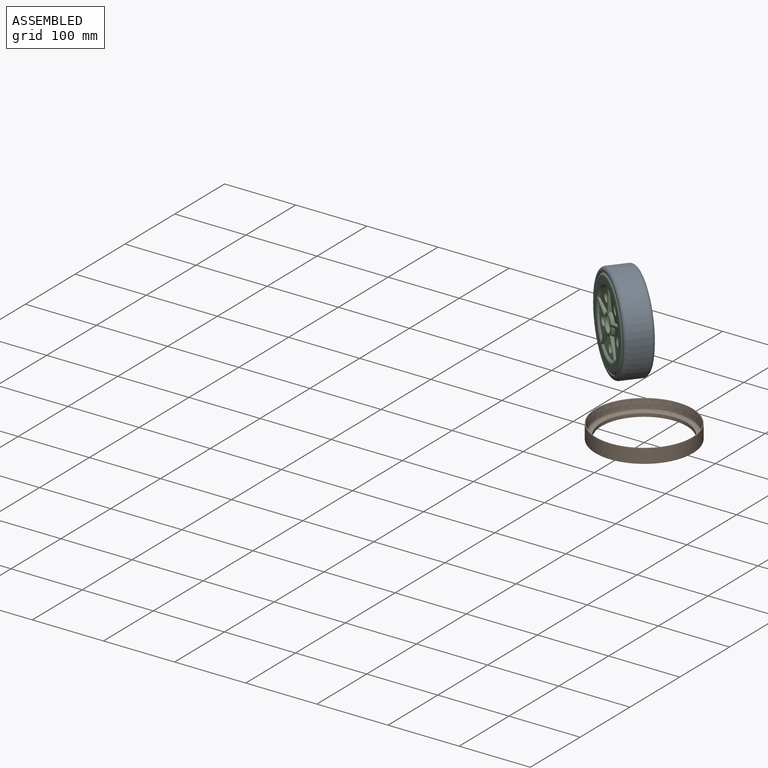
[diagram: assembled view]
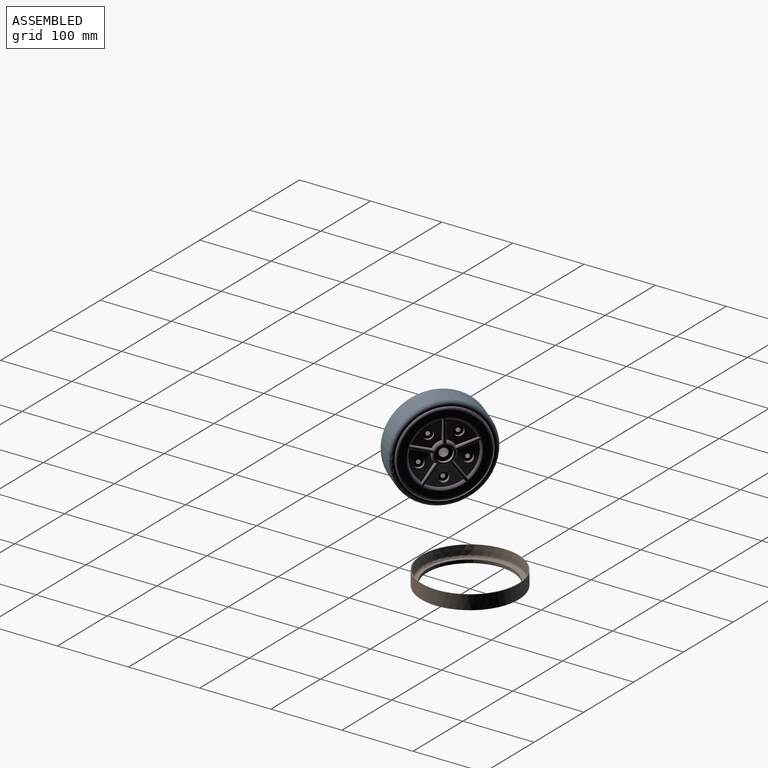
[diagram: assembled view, second angle]
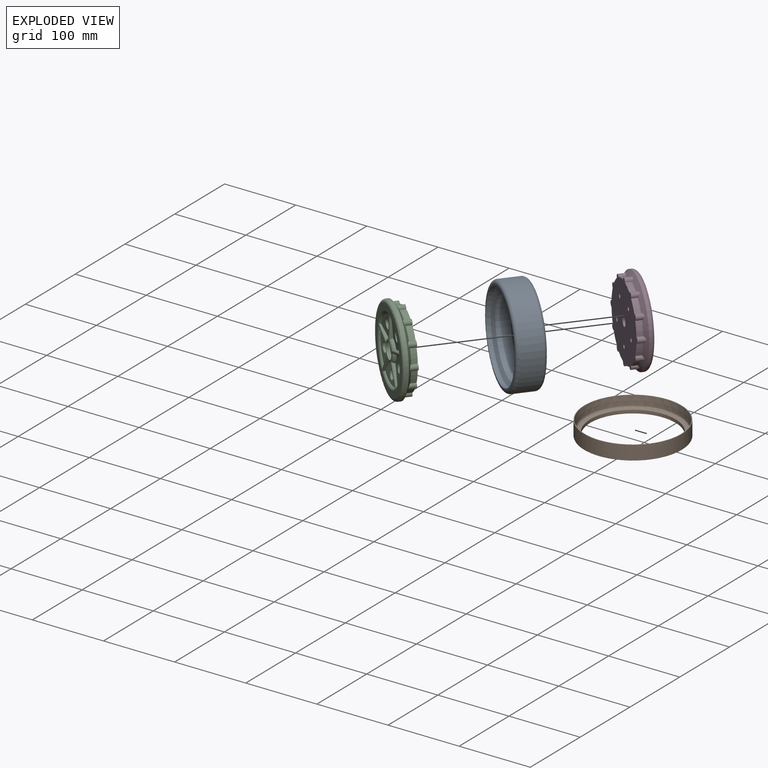
[diagram: exploded view]
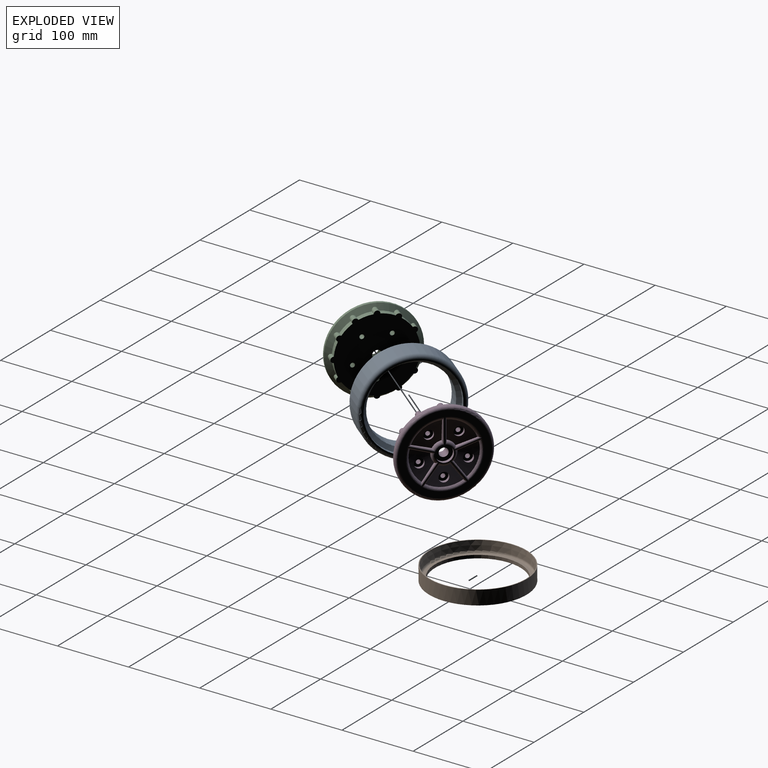
[diagram: exploded view, second angle]
ASSEMBLY  parts=4 mates=2
PART A: 10 faces, bbox 145x38x145 mm
  f0: cylinder r=54mm len=108mm, axis (0,-1,0), area 6276.9mm2, adj f4,f8
  f1: cylinder r=67mm len=134mm, axis (0,-1,0), area 11787.3mm2, adj f5,f9
  f2: plane 124x124mm, normal (0,1,0), area 766.5mm2, adj f3,f5
  f3: cylinder r=60mm len=120mm, axis (0,-1,0), area 2261.9mm2, adj f2,f4
  f4: cone r=54mm half-angle=58deg, axis (0,1,0), area 2534mm2, adj f0,f3
  f5: torus R=62mm, axis (0,-1,0), area 3216.7mm2, adj f1,f2
  f6: plane 124x124mm, normal (0,-1,0), area 766.5mm2, adj f7,f9
  f7: cylinder r=60mm len=120mm, axis (0,1,0), area 2261.9mm2, adj f6,f8
  f8: cone r=54mm half-angle=58deg, axis (0,-1,0), area 2534mm2, adj f0,f7
  f9: torus R=62mm, axis (0,1,0), area 3216.7mm2, adj f1,f6
PART B: 7 faces, bbox 144x144x20 mm
  f0: plane 127x127mm, normal (0,0,1), area 1358mm2, adj f1,f6
  f1: cylinder r=60mm len=120mm, axis (0,0,-1), area 1696.5mm2, adj f0,f3
  f2: cylinder r=68.5mm len=137mm, axis (0,0,-1), area 8608mm2, adj f3,f4
  f3: plane 137x137mm, normal (0,0,-1), area 3431.4mm2, adj f1,f2
  f4: plane 137x137mm, normal (0,0,1), area 427.3mm2, adj f2,f5
  f5: cone r=67.5mm half-angle=4.5deg, axis (0,0,1), area 5378.4mm2, adj f4,f6
  f6: torus R=63.5mm, axis (0,0,-1), area 1837.6mm2, adj f0,f5
PART C: 92 faces, bbox 129.9x20x129.9 mm
  f0: cylinder r=52mm len=13.52mm, axis (0,-1,0), area 153.8mm2, adj f26,f28,f90,f91
  f1: cylinder r=52mm len=18.46mm, axis (0,-1,0), area 153.8mm2, adj f26,f28,f89,f90
  f2: cylinder r=52mm len=18.46mm, axis (0,-1,0), area 153.8mm2, adj f26,f28,f88,f89
  f3: cylinder r=52mm len=13.52mm, axis (0,-1,0), area 153.8mm2, adj f26,f28,f87,f88
  f4: cylinder r=52mm len=18.46mm, axis (0,-1,0), area 153.8mm2, adj f26,f28,f86,f87
  f5: cylinder r=52mm len=18.46mm, axis (0,-1,0), area 153.8mm2, adj f26,f28,f85,f86
  f6: cylinder r=52mm len=13.52mm, axis (0,-1,0), area 153.8mm2, adj f26,f28,f84,f85
  f7: cylinder r=52mm len=18.46mm, axis (0,-1,0), area 153.8mm2, adj f26,f28,f83,f84
  f8: cylinder r=52mm len=18.46mm, axis (0,-1,0), area 153.8mm2, adj f26,f28,f82,f83
  f9: cylinder r=52mm len=13.52mm, axis (0,-1,0), area 153.8mm2, adj f26,f28,f81,f82
  f10: cylinder r=52mm len=18.46mm, axis (0,-1,0), area 153.8mm2, adj f26,f28,f80,f81
  f11: cone r=42.75mm half-angle=85deg, axis (0,1,0), area 723.5mm2, adj f23,f25,f34,f43,f75
  f12: cone r=45mm half-angle=40deg, axis (0,1,0), area 80.8mm2, adj f14,f41,f42,f45,f56,f57
  f13: cylinder r=16mm len=13.82mm, axis (0,-1,0), area 15.1mm2, adj f14,f41,f42,f44
  f14: cone r=42.75mm half-angle=85deg, axis (0,1,0), area 723.4mm2, adj f12,f13,f41,f42,f73
  f15: cone r=45mm half-angle=40deg, axis (0,1,0), area 80.8mm2, adj f17,f39,f40,f47,f58,f59
  f16: cylinder r=16mm len=14.53mm, axis (0,-1,0), area 15.1mm2, adj f17,f39,f40,f46
  f17: cone r=42.75mm half-angle=85deg, axis (0,1,0), area 723.5mm2, adj f15,f16,f39,f40,f71
  f18: cone r=45mm half-angle=40deg, axis (0,1,0), area 80.8mm2, adj f21,f37,f38,f49,f60,f61
  f19: cylinder r=16mm len=13.82mm, axis (0,-1,0), area 15.1mm2, adj f21,f37,f38,f48
  f20: cone r=45mm half-angle=40deg, axis (0,1,0), area 80.8mm2, adj f24,f35,f36,f50,f62,f63
  f21: cone r=42.75mm half-angle=85deg, axis (0,1,0), area 723.4mm2, adj f18,f19,f37,f38,f79
  f22: cylinder r=16mm len=11.76mm, axis (0,-1,0), area 15.1mm2, adj f24,f35,f36,f51
  f23: cone r=45mm half-angle=40deg, axis (0,1,0), area 80.8mm2, adj f11,f34,f43,f52,f55,f64
  f24: cone r=42.75mm half-angle=85deg, axis (0,1,0), area 723.5mm2, adj f20,f22,f35,f36,f77
  f25: cylinder r=16mm len=11.76mm, axis (0,-1,0), area 15.1mm2, adj f11,f34,f43,f53
  f26: plane 112x112mm, normal (0,-1,0), area 8546.9mm2, adj f0,f1,f2,f3,f4,f5,f6,f7
  f27: cylinder r=52mm len=18.46mm, axis (0,-1,0), area 153.8mm2, adj f26,f28,f80,f91
  f28: cone r=60mm half-angle=58deg, axis (0,1,0), area 2959.5mm2, adj f0,f1,f2,f3,f4,f5,f6,f7
  f29: cylinder r=60mm len=120mm, axis (0,-1,0), area 1131mm2, adj f28,f54
  f30: plane 22.23x22.23mm, normal (0,1,0), area 274.9mm2, adj f31,f33
  f31: cylinder r=11.11mm len=22.23mm, axis (0,1,0), area 349.1mm2, adj f30,f32
  f32: plane 112x112mm, normal (0,1,0), area 3190.8mm2, adj f31,f44,f45,f46,f47,f48,f49,f50
  f33: cylinder r=6mm len=15mm, axis (0,1,0), area 565.5mm2, adj f26,f30
  f34: plane 28.04x3.05mm, normal (-1,0,0), area 50.1mm2, adj f11,f23,f25,f53,f64
  f35: plane 28.04x3.05mm, normal (1,0,0), area 50.1mm2, adj f20,f22,f24,f51,f63
  f36: plane 26.67x8.7mm, normal (-0.31,0,0.95), area 50.1mm2, adj f20,f22,f24,f51,f62
  f37: plane 26.67x8.7mm, normal (0.31,0,-0.95), area 50.1mm2, adj f18,f19,f21,f48,f61
  f38: plane 22.69x16.5mm, normal (0.81,0,0.59), area 50.1mm2, adj f18,f19,f21,f48,f60
  f39: plane 22.69x16.5mm, normal (-0.81,0,-0.59), area 50.1mm2, adj f15,f16,f17,f46,f59
  f40: plane 22.69x16.5mm, normal (0.81,0,-0.59), area 50.1mm2, adj f15,f16,f17,f46,f58
  f41: plane 22.69x16.5mm, normal (-0.81,0,0.59), area 50.1mm2, adj f12,f13,f14,f44,f57
  f42: plane 26.67x8.7mm, normal (-0.31,0,-0.95), area 50.1mm2, adj f12,f13,f14,f44,f56
  f43: plane 26.67x8.7mm, normal (0.31,0,0.95), area 50.1mm2, adj f11,f23,f25,f53,f55
  f44: torus R=12mm, axis (0,-1,0), area 89.6mm2, adj f13,f32,f41,f42,f56,f57
  f45: torus R=46.87mm, axis (0,-1,0), area 188.1mm2, adj f12,f32,f56,f57
  f46: torus R=12mm, axis (0,-1,0), area 89.6mm2, adj f16,f32,f39,f40,f58,f59
  f47: torus R=46.87mm, axis (0,-1,0), area 188.1mm2, adj f15,f32,f58,f59
  f48: torus R=12mm, axis (0,-1,0), area 89.6mm2, adj f19,f32,f37,f38,f60,f61
  f49: torus R=46.87mm, axis (0,-1,0), area 188.1mm2, adj f18,f32,f60,f61
  f50: torus R=46.87mm, axis (0,-1,0), area 188.1mm2, adj f20,f32,f62,f63
  f51: torus R=12mm, axis (0,-1,0), area 89.6mm2, adj f22,f32,f35,f36,f62,f63
  f52: torus R=46.87mm, axis (0,-1,0), area 188.1mm2, adj f23,f32,f55,f64
  f53: torus R=12mm, axis (0,-1,0), area 89.6mm2, adj f25,f32,f34,f43,f55,f64
  f54: torus R=56mm, axis (0,-1,0), area 2311.3mm2, adj f29,f32
  f55: cylinder r=2mm len=33.78mm, axis (-0.95,0,0.31), area 98.5mm2, adj f23,f32,f43,f52,f53
  f56: cylinder r=2mm len=33.78mm, axis (0.95,0,-0.31), area 98.5mm2, adj f12,f32,f42,f44,f45
  f57: cylinder r=2mm len=29.39mm, axis (-0.59,0,-0.81), area 98.5mm2, adj f12,f32,f41,f44,f45
  f58: cylinder r=2mm len=29.39mm, axis (0.59,0,0.81), area 98.5mm2, adj f15,f32,f40,f46,f47
  f59: cylinder r=2mm len=29.39mm, axis (0.59,0,-0.81), area 98.5mm2, adj f15,f32,f39,f46,f47
  f60: cylinder r=2mm len=29.39mm, axis (-0.59,0,0.81), area 98.5mm2, adj f18,f32,f38,f48,f49
  f61: cylinder r=2mm len=33.78mm, axis (0.95,0,0.31), area 98.5mm2, adj f18,f32,f37,f48,f49
  f62: cylinder r=2mm len=33.78mm, axis (-0.95,0,-0.31), area 98.5mm2, adj f20,f32,f36,f50,f51
  f63: cylinder r=2mm len=34.87mm, axis (0,0,1), area 98.5mm2, adj f20,f32,f35,f50,f51
  f64: cylinder r=2mm len=34.87mm, axis (0,0,-1), area 98.5mm2, adj f23,f32,f34,f52,f53
  f65: cylinder r=3mm len=12mm, axis (0,-1,0), area 226.2mm2, adj f26,f76
  f66: cylinder r=3mm len=12mm, axis (0,-1,0), area 226.2mm2, adj f26,f78
  f67: cylinder r=3mm len=12mm, axis (0,-1,0), area 226.2mm2, adj f26,f70
  f68: cylinder r=3mm len=12mm, axis (0,-1,0), area 226.2mm2, adj f26,f72
  f69: cylinder r=3mm len=12mm, axis (0,-1,0), area 226.2mm2, adj f26,f74
  f70: plane 13x13mm, normal (0,1,0), area 104.5mm2, adj f67,f71
  f71: cylinder r=6.5mm len=13mm, axis (0,-1,0), area 176.7mm2, adj f17,f70
  f72: plane 13x13mm, normal (0,1,0), area 104.5mm2, adj f68,f73
  f73: cylinder r=6.5mm len=13mm, axis (0,-1,0), area 176.8mm2, adj f14,f72
  f74: plane 13x13mm, normal (0,1,0), area 104.5mm2, adj f69,f75
  f75: cylinder r=6.5mm len=13mm, axis (0,-1,0), area 176.8mm2, adj f11,f74
  f76: plane 13x13mm, normal (0,1,0), area 104.5mm2, adj f65,f77
  f77: cylinder r=6.5mm len=13mm, axis (0,-1,0), area 176.8mm2, adj f24,f76
  f78: plane 13x13mm, normal (0,1,0), area 104.5mm2, adj f66,f79
  f79: cylinder r=6.5mm len=13mm, axis (0,-1,0), area 176.8mm2, adj f21,f78
  f80: cylinder r=4mm len=10.5mm, axis (0,-1,0), area 123.6mm2, adj f10,f26,f27,f28
  f81: cylinder r=4mm len=10.5mm, axis (0,-1,0), area 123.6mm2, adj f9,f10,f26,f28
  f82: cylinder r=4mm len=10.5mm, axis (0,-1,0), area 123.6mm2, adj f8,f9,f26,f28
  f83: cylinder r=4mm len=10.5mm, axis (0,-1,0), area 123.6mm2, adj f7,f8,f26,f28
  f84: cylinder r=4mm len=10.5mm, axis (0,-1,0), area 123.6mm2, adj f6,f7,f26,f28
  f85: cylinder r=4mm len=10.5mm, axis (0,-1,0), area 123.6mm2, adj f5,f6,f26,f28
  f86: cylinder r=4mm len=10.5mm, axis (0,-1,0), area 123.6mm2, adj f4,f5,f26,f28
  f87: cylinder r=4mm len=10.5mm, axis (0,-1,0), area 123.6mm2, adj f3,f4,f26,f28
  f88: cylinder r=4mm len=10.5mm, axis (0,-1,0), area 123.6mm2, adj f2,f3,f26,f28
  f89: cylinder r=4mm len=10.5mm, axis (0,-1,0), area 123.6mm2, adj f1,f2,f26,f28
  f90: cylinder r=4mm len=10.5mm, axis (0,-1,0), area 123.6mm2, adj f0,f1,f26,f28
  f91: cylinder r=4mm len=10.5mm, axis (0,-1,0), area 123.6mm2, adj f0,f26,f27,f28
PART D: same geometry as C
PLACE A rot(axis=(0,0,-1),38.9deg) t=(0.77,-41.69,2.18)mm
PLACE B t=(0,0,-162.44)mm
PLACE C rot(axis=(0,0,1),141.1deg) t=(0.77,-41.69,2.18)mm
PLACE D rot(axis=(0,0,-1),38.9deg) t=(0.77,-41.69,2.18)mm fixed
MATE fastened A.f0 <-> D.f0  axis (-0.63,-0.78,0) through (0.77,-41.69,2.18)mm
MATE fastened D.f33 <-> C.f33  axis (-0.63,-0.78,0) through (0.77,-41.69,2.18)mm
